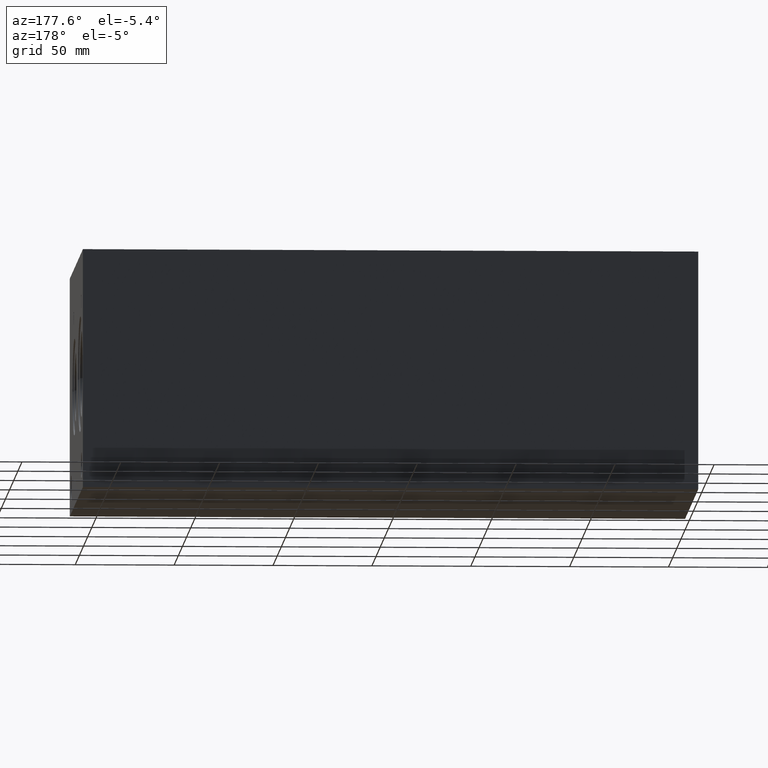
[diagram: clean part render]
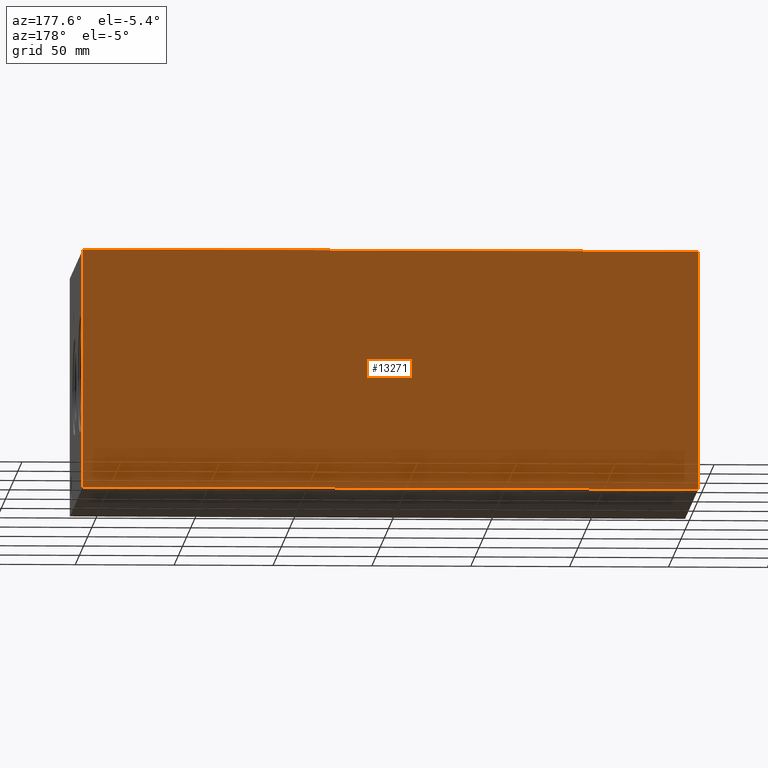
[diagram: same view with one face highlighted and labeled with its STEP entity id]
A machine part, auxiliary view. The second image highlights one B-rep face of the part: STEP entity #13271.
In plain terms, the highlighted planar face has unit normal (0, 1, 0).
Its self-contained STEP definition (entity closure, byte-faithful):
#1040=PLANE('',#14193);
#1734=FACE_OUTER_BOUND('',#2525,.T.);
#2525=EDGE_LOOP('',(#11895,#11896,#11897,#11898));
#2589=LINE('',#17390,#3756);
#2651=LINE('',#17668,#3818);
#3721=LINE('',#22953,#4888);
#3722=LINE('',#22954,#4889);
#3756=VECTOR('',#14253,10.);
#3818=VECTOR('',#14369,10.);
#4888=VECTOR('',#17173,10.);
#4889=VECTOR('',#17174,10.);
#5227=VERTEX_POINT('',#17387);
#5228=VERTEX_POINT('',#17389);
#5286=VERTEX_POINT('',#17661);
#5289=VERTEX_POINT('',#17666);
#6511=EDGE_CURVE('',#5227,#5228,#2589,.T.);
#6597=EDGE_CURVE('',#5286,#5289,#2651,.T.);
#8297=EDGE_CURVE('',#5227,#5286,#3721,.T.);
#8298=EDGE_CURVE('',#5228,#5289,#3722,.T.);
#11895=ORIENTED_EDGE('',*,*,#8297,.T.);
#11896=ORIENTED_EDGE('',*,*,#6597,.T.);
#11897=ORIENTED_EDGE('',*,*,#8298,.F.);
#11898=ORIENTED_EDGE('',*,*,#6511,.F.);
#13271=ADVANCED_FACE('',(#1734),#1040,.T.);
#14193=AXIS2_PLACEMENT_3D('',#22952,#17171,#17172);
#14253=DIRECTION('',(0.,0.,1.));
#14369=DIRECTION('',(0.,0.,1.));
#17171=DIRECTION('center_axis',(0.,1.,0.));
#17172=DIRECTION('ref_axis',(-1.,0.,0.));
#17173=DIRECTION('',(-1.,0.,0.));
#17174=DIRECTION('',(-1.,0.,0.));
#17387=CARTESIAN_POINT('',(311.15,158.75,0.));
#17389=CARTESIAN_POINT('',(311.15,158.75,120.65));
#17390=CARTESIAN_POINT('',(311.15,158.75,0.));
#17661=CARTESIAN_POINT('',(0.,158.75,0.));
#17666=CARTESIAN_POINT('',(0.,158.75,120.65));
#17668=CARTESIAN_POINT('',(0.,158.75,0.));
#22952=CARTESIAN_POINT('Origin',(311.15,158.75,0.));
#22953=CARTESIAN_POINT('',(311.15,158.75,0.));
#22954=CARTESIAN_POINT('',(311.15,158.75,120.65));